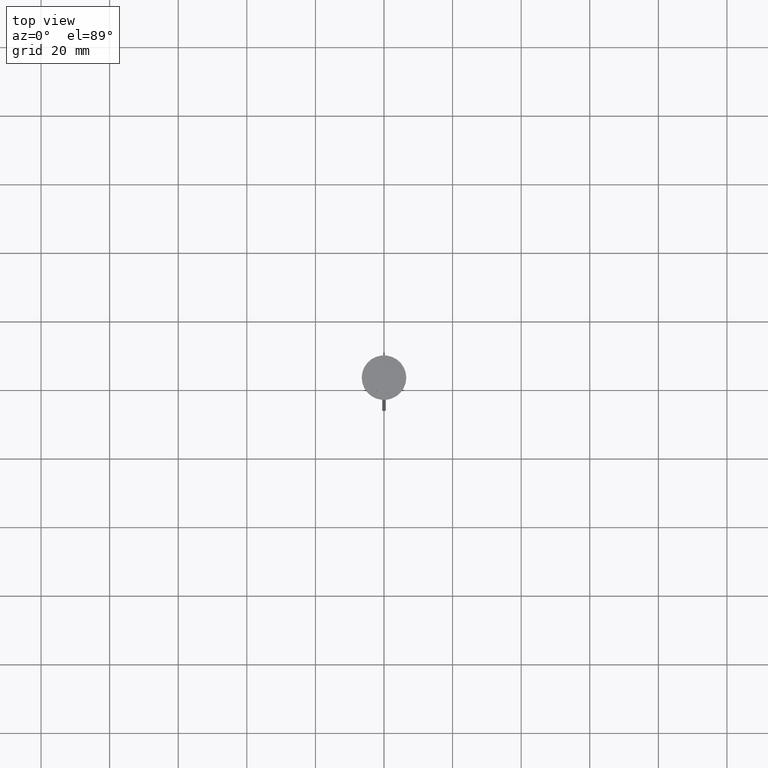
[diagram: clean part render]
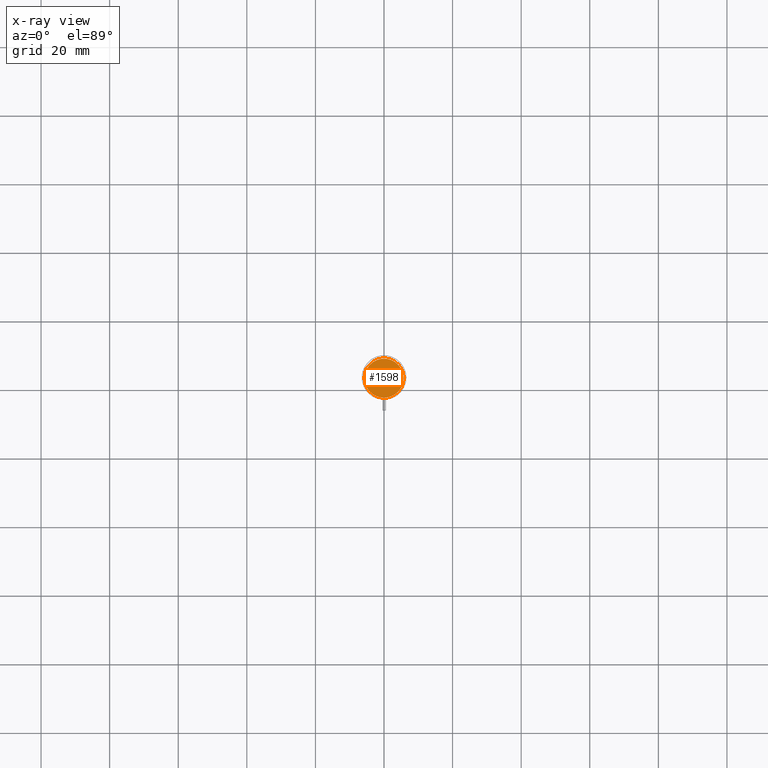
[diagram: x-ray — body ghosted, one internal face saturated and labeled with its STEP entity id]
A machine part, top view, then the same camera in x-ray: the body is ghosted and one INTERNAL B-rep face — a face not visible from any outside direction — is saturated and labeled: STEP entity #1598.
In plain terms, the highlighted planar face has unit normal (0, 0, -1).
Its self-contained STEP definition (entity closure, byte-faithful):
#14 = EDGE_CURVE ( 'NONE', #719, #1556, #212, .T. ) ;
#212 = CIRCLE ( 'NONE', #1306, 5.700000000000002842 ) ;
#297 = CARTESIAN_POINT ( 'NONE',  ( 0.000000000000000000, 0.000000000000000000, -10.50000000000000178 ) ) ;
#346 = DIRECTION ( 'NONE',  ( -1.000000000000000000, 0.000000000000000000, 0.000000000000000000 ) ) ;
#659 = DIRECTION ( 'NONE',  ( 0.000000000000000000, 0.000000000000000000, -1.000000000000000000 ) ) ;
#719 = VERTEX_POINT ( 'NONE', #1982 ) ;
#887 = EDGE_CURVE ( 'NONE', #1556, #719, #1044, .T. ) ;
#1044 = CIRCLE ( 'NONE', #1372, 5.700000000000002842 ) ;
#1057 = DIRECTION ( 'NONE',  ( -0.000000000000000000, -0.000000000000000000, 1.000000000000000000 ) ) ;
#1199 = PLANE ( 'NONE',  #1334 ) ;
#1212 = CARTESIAN_POINT ( 'NONE',  ( 5.700000000000002842, 7.164183775012019380E-16, -10.50000000000000178 ) ) ;
#1295 = DIRECTION ( 'NONE',  ( -1.000000000000000000, 0.000000000000000000, 0.000000000000000000 ) ) ;
#1306 = AXIS2_PLACEMENT_3D ( 'NONE', #1440, #1057, #1295 ) ;
#1334 = AXIS2_PLACEMENT_3D ( 'NONE', #1431, #659, #1417 ) ;
#1372 = AXIS2_PLACEMENT_3D ( 'NONE', #297, #1863, #346 ) ;
#1417 = DIRECTION ( 'NONE',  ( -1.000000000000000000, 0.000000000000000000, -0.000000000000000000 ) ) ;
#1431 = CARTESIAN_POINT ( 'NONE',  ( 0.000000000000000000, 0.000000000000000000, -10.50000000000000178 ) ) ;
#1440 = CARTESIAN_POINT ( 'NONE',  ( 0.000000000000000000, 0.000000000000000000, -10.50000000000000178 ) ) ;
#1556 = VERTEX_POINT ( 'NONE', #1212 ) ;
#1598 = ADVANCED_FACE ( 'NONE', ( #2169 ), #1199, .F. ) ;
#1628 = ORIENTED_EDGE ( 'NONE', *, *, #887, .T. ) ;
#1863 = DIRECTION ( 'NONE',  ( -0.000000000000000000, -0.000000000000000000, 1.000000000000000000 ) ) ;
#1930 = EDGE_LOOP ( 'NONE', ( #2096, #1628 ) ) ;
#1982 = CARTESIAN_POINT ( 'NONE',  ( -5.700000000000002842, 0.000000000000000000, -10.50000000000000178 ) ) ;
#2096 = ORIENTED_EDGE ( 'NONE', *, *, #14, .T. ) ;
#2169 = FACE_OUTER_BOUND ( 'NONE', #1930, .T. ) ;